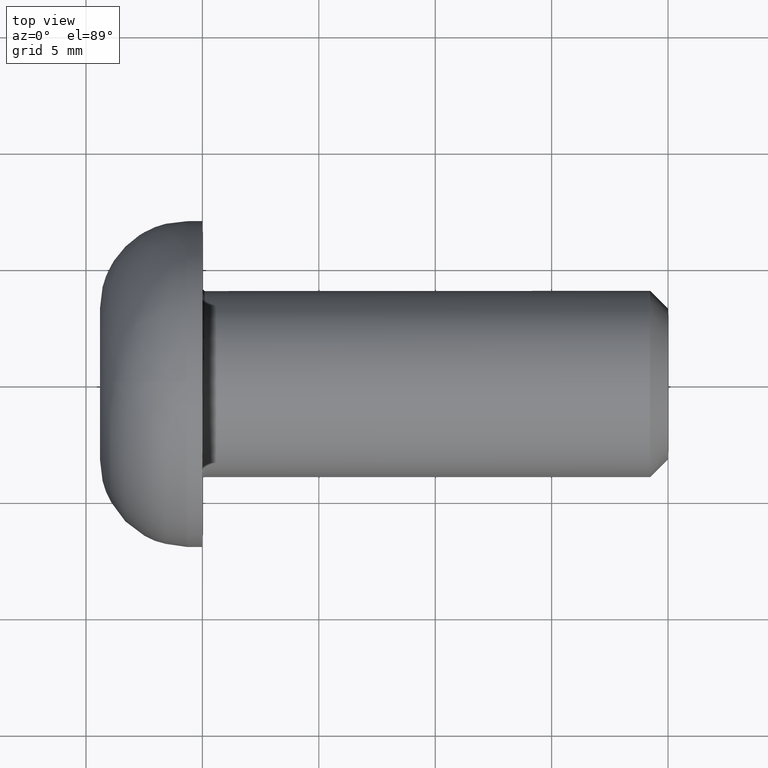
[diagram: clean part render]
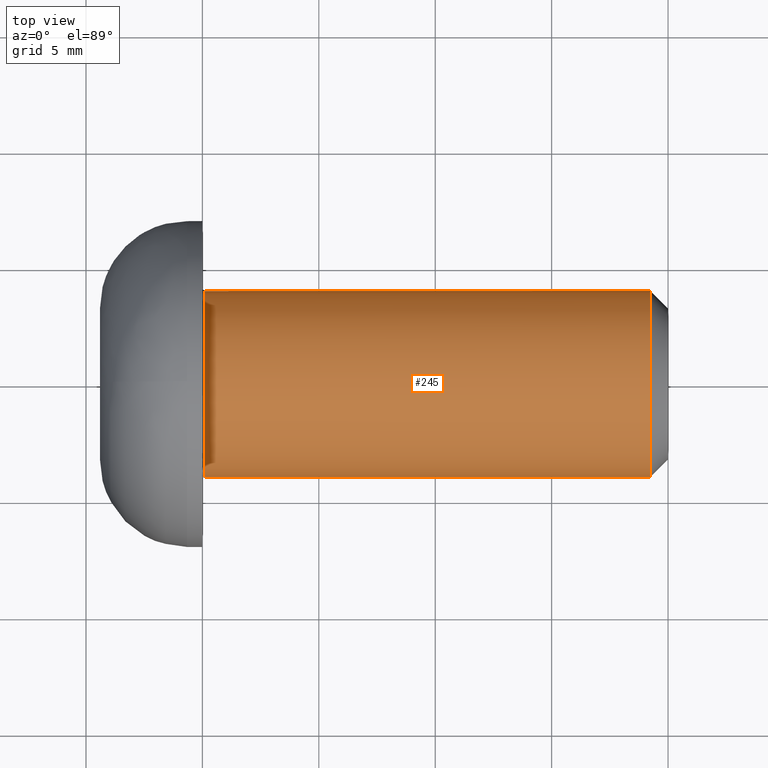
[diagram: same view with one face highlighted and labeled with its STEP entity id]
A machine part, top view. The second image highlights one B-rep face of the part: STEP entity #245.
In plain terms, the highlighted cylindrical surface (bore or boss wall) has radius 4 mm, axis along (1, 0, 0).
Its self-contained STEP definition (entity closure, byte-faithful):
#36=LINE('',#392,#52);
#52=VECTOR('',#326,4.);
#68=CYLINDRICAL_SURFACE('',#287,4.);
#71=FACE_OUTER_BOUND('',#86,.T.);
#86=EDGE_LOOP('',(#178,#179,#180,#181,#182,#183));
#104=CIRCLE('',#285,4.);
#105=CIRCLE('',#286,4.);
#106=CIRCLE('',#288,4.);
#107=CIRCLE('',#289,4.);
#115=VERTEX_POINT('',#382);
#116=VERTEX_POINT('',#384);
#117=VERTEX_POINT('',#388);
#118=VERTEX_POINT('',#389);
#140=EDGE_CURVE('',#115,#116,#104,.T.);
#141=EDGE_CURVE('',#116,#115,#105,.T.);
#142=EDGE_CURVE('',#117,#118,#106,.T.);
#143=EDGE_CURVE('',#118,#117,#107,.T.);
#144=EDGE_CURVE('',#118,#116,#36,.T.);
#178=ORIENTED_EDGE('',*,*,#142,.F.);
#179=ORIENTED_EDGE('',*,*,#143,.F.);
#180=ORIENTED_EDGE('',*,*,#144,.T.);
#181=ORIENTED_EDGE('',*,*,#140,.F.);
#182=ORIENTED_EDGE('',*,*,#141,.F.);
#183=ORIENTED_EDGE('',*,*,#144,.F.);
#245=ADVANCED_FACE('',(#71),#68,.T.);
#285=AXIS2_PLACEMENT_3D('',#385,#316,#317);
#286=AXIS2_PLACEMENT_3D('',#386,#318,#319);
#287=AXIS2_PLACEMENT_3D('',#387,#320,#321);
#288=AXIS2_PLACEMENT_3D('',#390,#322,#323);
#289=AXIS2_PLACEMENT_3D('',#391,#324,#325);
#316=DIRECTION('center_axis',(-1.,-5.98373334115326E-18,0.));
#317=DIRECTION('ref_axis',(4.33680868994202E-18,-1.,1.22464679914735E-16));
#318=DIRECTION('center_axis',(-1.,-5.98373334115326E-18,0.));
#319=DIRECTION('ref_axis',(4.33680868994202E-18,-1.,1.22464679914735E-16));
#320=DIRECTION('center_axis',(1.,5.98373334115326E-18,0.));
#321=DIRECTION('ref_axis',(0.,1.,0.));
#322=DIRECTION('center_axis',(1.,5.98373334115326E-18,0.));
#323=DIRECTION('ref_axis',(0.,-1.,0.));
#324=DIRECTION('center_axis',(1.,5.98373334115326E-18,0.));
#325=DIRECTION('ref_axis',(0.,-1.,0.));
#326=DIRECTION('',(-1.,-5.98373334115326E-18,0.));
#382=CARTESIAN_POINT('',(0.100000000000002,-6.08935013147891E-16,4.));
#384=CARTESIAN_POINT('',(0.100000000000002,-4.,-4.89858719658941E-16));
#385=CARTESIAN_POINT('Origin',(0.100000000000002,-1.1907629348895E-16,0.));
#386=CARTESIAN_POINT('Origin',(0.100000000000002,-1.1907629348895E-16,0.));
#387=CARTESIAN_POINT('Origin',(15.25,-2.8422733370478E-17,0.));
#388=CARTESIAN_POINT('',(19.2331875,4.,4.89858719658941E-16));
#389=CARTESIAN_POINT('',(19.2331875,-4.,-4.89858719658941E-16));
#390=CARTESIAN_POINT('Origin',(19.2331875,-4.58840152266308E-18,0.));
#391=CARTESIAN_POINT('Origin',(19.2331875,-4.58840152266308E-18,0.));
#392=CARTESIAN_POINT('',(15.25,-4.,-4.89858719658941E-16));